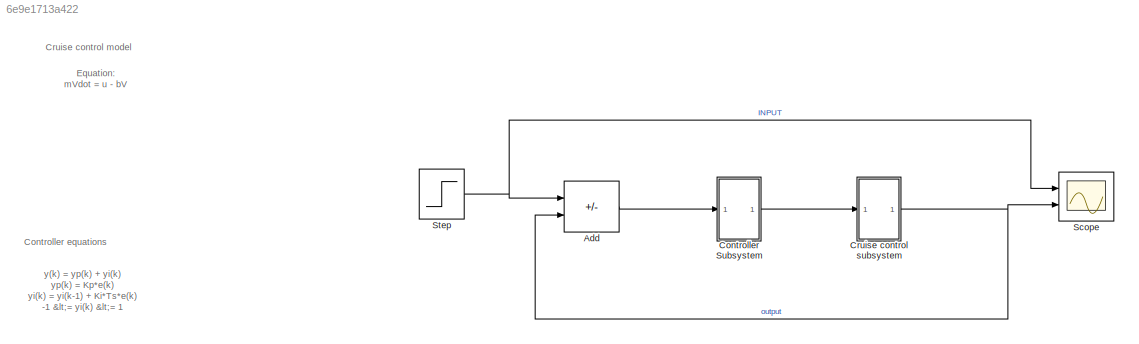
MODEL slx_6e9e1713a422
KIND model
CONFIG AbsTol = auto
CONFIG EnableMultiTasking = off
CONFIG FixedStep = auto
CONFIG MaxStep = auto
CONFIG MinStep = auto
CONFIG RelTol = 1e-3
CONFIG SampleTimeConstraint = Unconstrained
CONFIG SolverName = ode45
CONFIG StartTime = 0.0
CONFIG StopTime = 120
BLOCK [Sum] Add
  IconShape = rectangular
  Inputs = +-
  Ports = [2, 1]
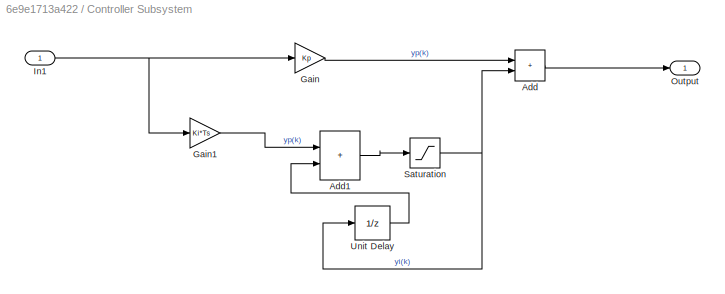
BLOCK [SubSystem] Controller Subsystem
  Ports = [1, 1]
  RequestExecContextInheritance = off
BLOCK [Sum] Controller Subsystem/Add
  IconShape = rectangular
  Ports = [2, 1]
BLOCK [Sum] Controller Subsystem/Add1
  IconShape = rectangular
  Ports = [2, 1]
BLOCK [Gain] Controller Subsystem/Gain
  Gain = Kp
BLOCK [Gain] Controller Subsystem/Gain1
  Gain = Ki*Ts
BLOCK [Inport] Controller Subsystem/In1
BLOCK [Outport] Controller Subsystem/Output
BLOCK [Saturate] Controller Subsystem/Saturation
  LowerLimit = -1
  UpperLimit = 1
BLOCK [UnitDelay] Controller Subsystem/Unit Delay
  HasFrameUpgradeWarning = on
  SampleTime = -1
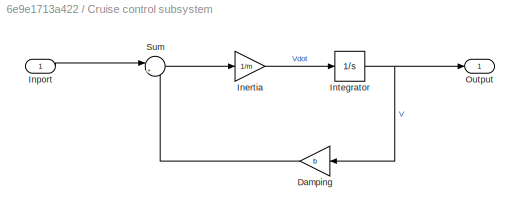
BLOCK [SubSystem] Cruise control subsystem
  Ports = [1, 1]
  RequestExecContextInheritance = off
BLOCK [Gain] Cruise control subsystem/Damping
  Gain = b
  NameLocation = top
BLOCK [Gain] Cruise control subsystem/Inertia
  Gain = 1/m
BLOCK [Inport] Cruise control subsystem/Inport
BLOCK [Integrator] Cruise control subsystem/Integrator
  Ports = [1, 1]
BLOCK [Outport] Cruise control subsystem/Output
BLOCK [Sum] Cruise control subsystem/Sum
  Inputs = |+-
  Ports = [2, 1]
BLOCK [Scope] Scope
  Floating = off
  NumInputPorts = 2
  Ports = [2]
  ScopeSpecificationString = Simulink.scopes.TimeScopeBlockCfg('CurrentConfiguration', extmgr.ConfigurationSet(extmgr.Configuration('Core','General UI',true),extmgr.Configuration('Core','Source UI',true),extmgr.Configuration('Sources','WiredSimulink',true),extmgr.Configuration('Visuals','Time Domain',true,'SerializedDisplays',{struct('MinYLimReal','-0.125','MaxYLimReal','1.125','YLabelReal','','MinYLimMag','0.00000','MaxYLimM...<+1949ch>
BLOCK [Step] Step
  SampleTime = 0
ANNOTATION (root): Cruise control model
ANNOTATION (root): y(k) = yp(k) + yi(k) yp(k) = Kp*e(k) yi(k) = yi(k-1) + Ki*Ts*e(k) -1 <= yi(k) <= 1
ANNOTATION (root): Controller equations
ANNOTATION (root): Equation: mVdot = u - bV
LINE Add:1 -> Controller Subsystem:1
LINE Controller Subsystem/Add1:1 -> Controller Subsystem/Saturation:1
LINE Controller Subsystem/Add:1 -> Controller Subsystem/Output:1
LINE Controller Subsystem/Gain1:1 -> Controller Subsystem/Add1:1
LINE Controller Subsystem/Gain:1 -> Controller Subsystem/Add:1
NET Controller Subsystem/In1:1 -> Controller Subsystem/Gain1:1, Controller Subsystem/Gain:1
NET Controller Subsystem/Saturation:1 -> Controller Subsystem/Add:2, Controller Subsystem/Unit Delay:1
LINE Controller Subsystem/Unit Delay:1 -> Controller Subsystem/Add1:2
LINE Controller Subsystem:1 -> Cruise control subsystem:1
LINE Cruise control subsystem/Damping:1 -> Cruise control subsystem/Sum:2
LINE Cruise control subsystem/Inertia:1 -> Cruise control subsystem/Integrator:1
LINE Cruise control subsystem/Inport:1 -> Cruise control subsystem/Sum:1
NET Cruise control subsystem/Integrator:1 -> Cruise control subsystem/Damping:1, Cruise control subsystem/Output:1
LINE Cruise control subsystem/Sum:1 -> Cruise control subsystem/Inertia:1
NET Cruise control subsystem:1 -> Add:2, Scope:2
NET Step:1 -> Add:1, Scope:1
note: NET lines group one-source signal fan-out (src -> all destinations, sorted); 1:1 wires keep LINE
